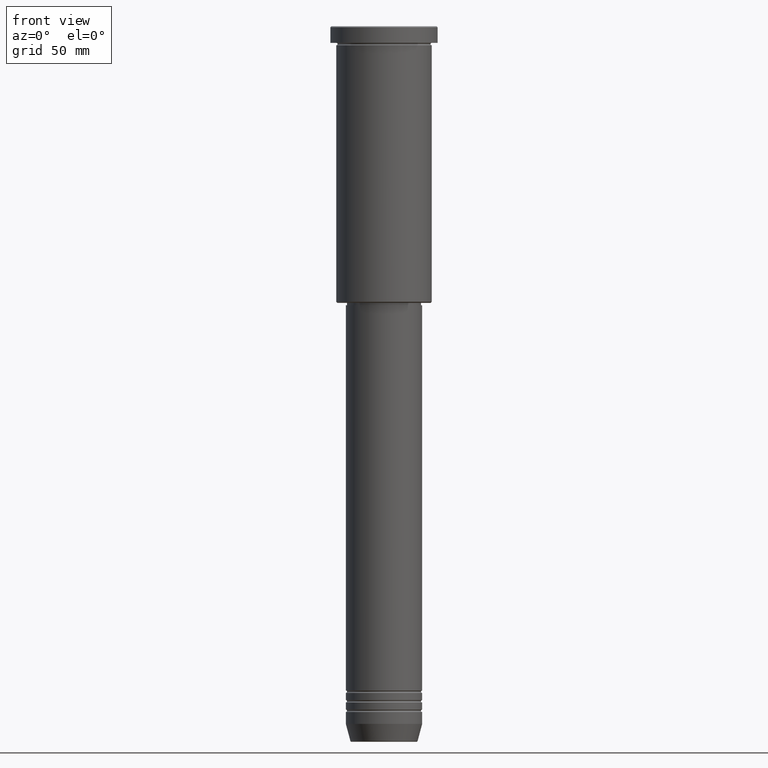
[diagram: clean part render]
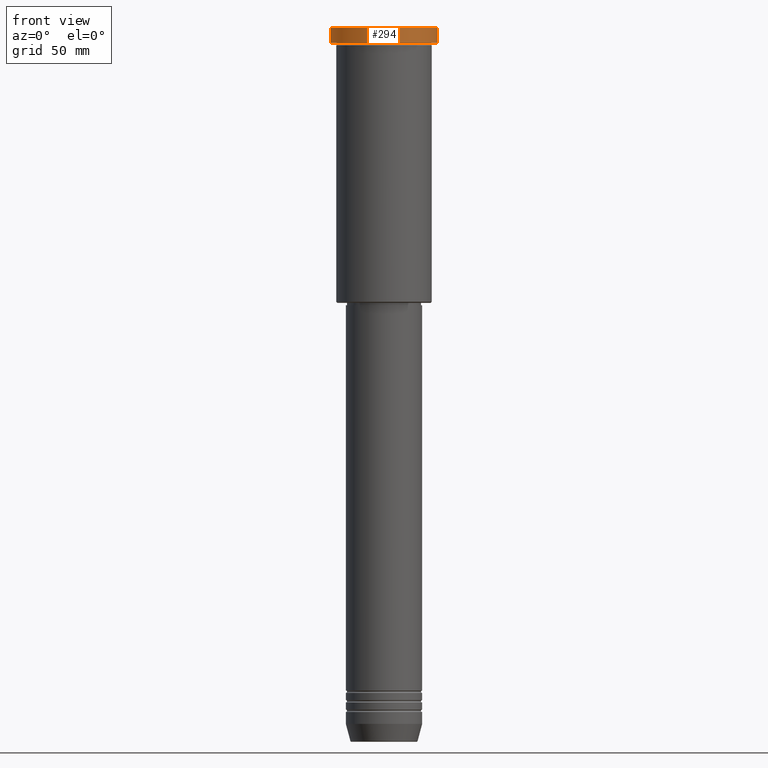
[diagram: same view with one face highlighted and labeled with its STEP entity id]
A machine part, front view. The second image highlights one B-rep face of the part: STEP entity #294.
In plain terms, the highlighted cylindrical surface (partial cylindrical patch) has radius 22.5 mm, axis along (-0, -0, 1).
Its self-contained STEP definition (entity closure, byte-faithful):
#5 = CARTESIAN_POINT ( 'NONE',  ( 22.50000000000000000, 0.000000000000000000, 0.000000000000000000 ) ) ;
#20 = CARTESIAN_POINT ( 'NONE',  ( 0.000000000000000000, 0.000000000000000000, 0.000000000000000000 ) ) ;
#52 = VERTEX_POINT ( 'NONE', #634 ) ;
#93 = ORIENTED_EDGE ( 'NONE', *, *, #491, .T. ) ;
#107 = ORIENTED_EDGE ( 'NONE', *, *, #835, .T. ) ;
#123 = CARTESIAN_POINT ( 'NONE',  ( 0.000000000000000000, 0.000000000000000000, -6.999999999999995559 ) ) ;
#148 = AXIS2_PLACEMENT_3D ( 'NONE', #123, #375, #948 ) ;
#195 = DIRECTION ( 'NONE',  ( -0.000000000000000000, -0.000000000000000000, 1.000000000000000000 ) ) ;
#207 = CYLINDRICAL_SURFACE ( 'NONE', #1072, 22.50000000000000000 ) ;
#214 = VECTOR ( 'NONE', #195, 1000.000000000000000 ) ;
#239 = ORIENTED_EDGE ( 'NONE', *, *, #534, .F. ) ;
#267 = ORIENTED_EDGE ( 'NONE', *, *, #726, .T. ) ;
#294 = ADVANCED_FACE ( 'NONE', ( #1132 ), #207, .T. ) ;
#365 = DIRECTION ( 'NONE',  ( -0.000000000000000000, -0.000000000000000000, 1.000000000000000000 ) ) ;
#370 = VERTEX_POINT ( 'NONE', #703 ) ;
#374 = CARTESIAN_POINT ( 'NONE',  ( -22.50000000000000000, 2.755455298081544778E-15, 0.000000000000000000 ) ) ;
#375 = DIRECTION ( 'NONE',  ( -0.000000000000000000, -0.000000000000000000, 1.000000000000000000 ) ) ;
#409 = CARTESIAN_POINT ( 'NONE',  ( 22.50000000000000000, 0.000000000000000000, -6.999999999999995559 ) ) ;
#441 = VERTEX_POINT ( 'NONE', #409 ) ;
#449 = EDGE_LOOP ( 'NONE', ( #239, #93, #267, #107 ) ) ;
#484 = DIRECTION ( 'NONE',  ( 0.000000000000000000, 0.000000000000000000, -1.000000000000000000 ) ) ;
#491 = EDGE_CURVE ( 'NONE', #370, #441, #733, .T. ) ;
#534 = EDGE_CURVE ( 'NONE', #370, #986, #851, .T. ) ;
#620 = VECTOR ( 'NONE', #365, 1000.000000000000000 ) ;
#628 = DIRECTION ( 'NONE',  ( -0.000000000000000000, -0.000000000000000000, 1.000000000000000000 ) ) ;
#634 = CARTESIAN_POINT ( 'NONE',  ( 22.50000000000000000, 0.000000000000000000, -0.4999999999999935052 ) ) ;
#703 = CARTESIAN_POINT ( 'NONE',  ( -22.50000000000000000, 2.755455298081544778E-15, -6.999999999999995559 ) ) ;
#726 = EDGE_CURVE ( 'NONE', #441, #52, #829, .T. ) ;
#733 = CIRCLE ( 'NONE', #148, 22.50000000000000000 ) ;
#777 = DIRECTION ( 'NONE',  ( 1.000000000000000000, 0.000000000000000000, 0.000000000000000000 ) ) ;
#795 = CARTESIAN_POINT ( 'NONE',  ( -22.50000000000000000, 2.755455298081544778E-15, -0.4999999999999935052 ) ) ;
#802 = DIRECTION ( 'NONE',  ( 1.000000000000000000, 0.000000000000000000, 0.000000000000000000 ) ) ;
#829 = LINE ( 'NONE', #5, #620 ) ;
#835 = EDGE_CURVE ( 'NONE', #52, #986, #922, .T. ) ;
#851 = LINE ( 'NONE', #374, #214 ) ;
#922 = CIRCLE ( 'NONE', #1018, 22.50000000000000000 ) ;
#948 = DIRECTION ( 'NONE',  ( 1.000000000000000000, 0.000000000000000000, 0.000000000000000000 ) ) ;
#986 = VERTEX_POINT ( 'NONE', #795 ) ;
#1018 = AXIS2_PLACEMENT_3D ( 'NONE', #1123, #484, #777 ) ;
#1072 = AXIS2_PLACEMENT_3D ( 'NONE', #20, #628, #802 ) ;
#1123 = CARTESIAN_POINT ( 'NONE',  ( 0.000000000000000000, 0.000000000000000000, -0.4999999999999935052 ) ) ;
#1132 = FACE_OUTER_BOUND ( 'NONE', #449, .T. ) ;